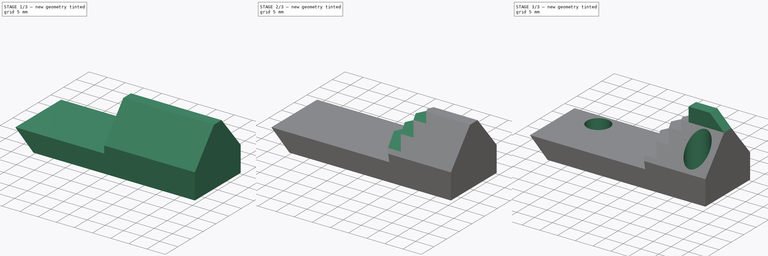
[diagram: build sequence overview — one tinted view per stage of 3, left to right]
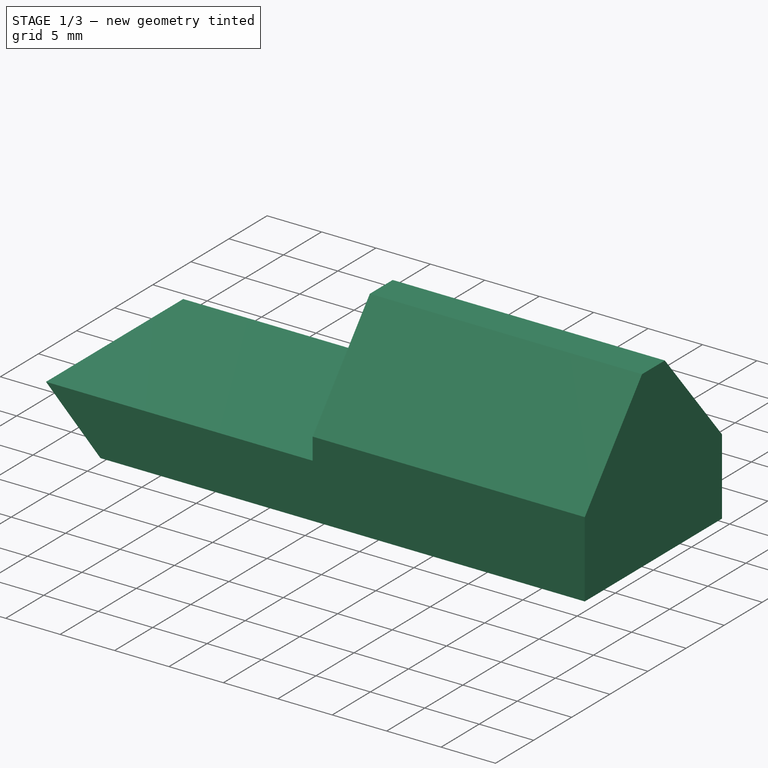
[diagram: stage 1 of 3 — iso view after this stage's code; geometry added in this stage tinted green]
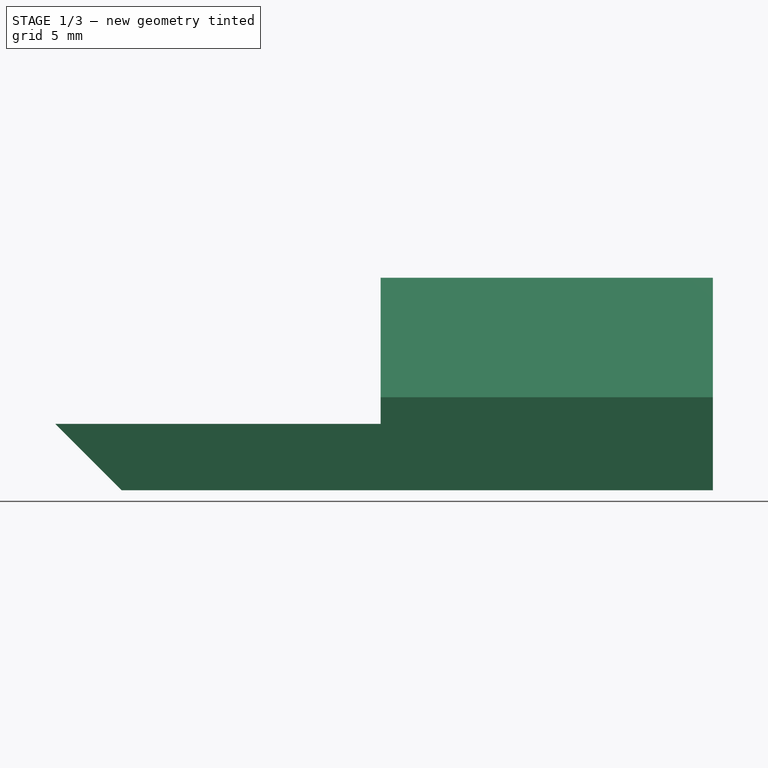
[diagram: stage 1 of 3 — front view after this stage's code; geometry added in this stage tinted green]
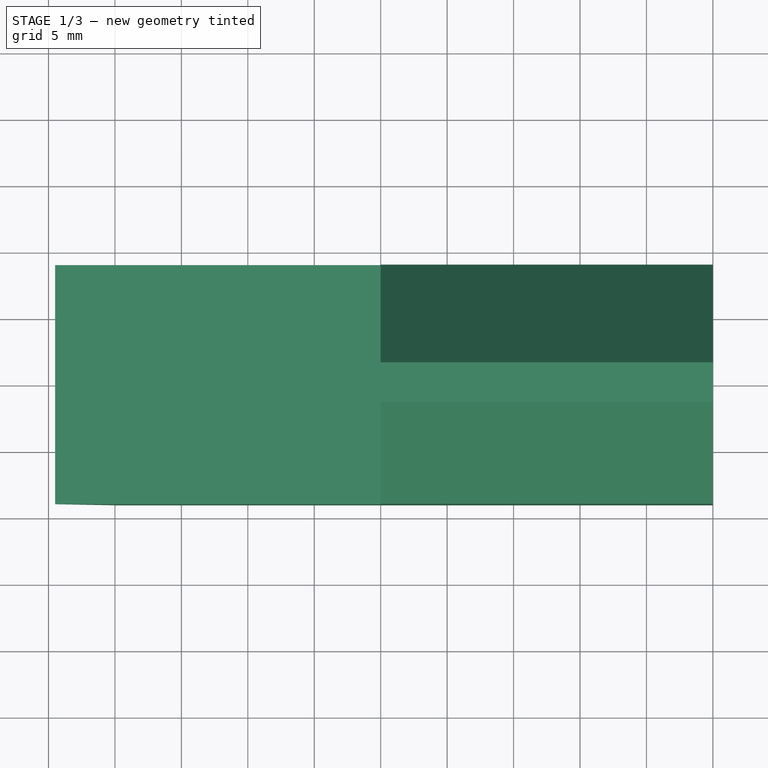
[diagram: stage 1 of 3 — top view after this stage's code; geometry added in this stage tinted green]
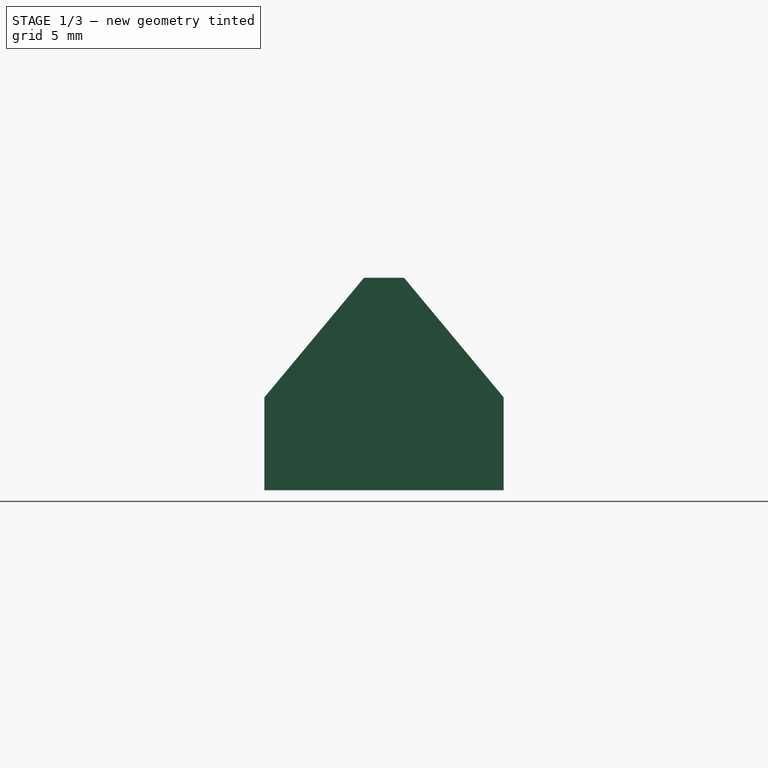
[diagram: stage 1 of 3 — right view after this stage's code; geometry added in this stage tinted green]
FCSTD DOCUMENT  (FreeCAD 1.0R39109 (Git))
Label: FrontSight.stl
License: All rights reserved
LicenseURL: http://en.wikipedia.org/wiki/All_rights_reserved
objects: Sketcher::SketchObject×5, PartDesign::Pad×3, PartDesign::Pocket×1, PartDesign::Mirrored×1, PartDesign::Hole×1, PartDesign::Body×1, App::Part×1
note: 28 computed .brp shape members not serialized (recipe doc carries the construction recipe); baked Part::Feature solids carry a one-line shape summary decoded from their .brp

FEATURE [Sketcher::SketchObject] Sketch
  ArcFitTolerance = 1e-06
  AttachmentSupport = -> [XZ_Plane001]
  FullyConstrained = true
  MakeInternals = false
  MapMode = 5
  Placement = pos=(0,0,0) rot=(1,0,0;1.5708rad)
  sketch-geometry (4):
    g0: LineSegment StartX=0 StartY=0 StartZ=0 EndX=0 EndY=5 EndZ=0
    g1: LineSegment StartX=0 StartY=5 StartZ=0 EndX=-49.5 EndY=5 EndZ=0
    g2: LineSegment StartX=-49.5 StartY=5 StartZ=0 EndX=-44.5 EndY=0 EndZ=0
    g3: LineSegment StartX=-44.5 StartY=0 StartZ=0 EndX=0 EndY=0 EndZ=0
  constraints (11):
    c: Coincident(g-1,g0)
    c: PointOnObject(g0,g-2)
    c: Coincident(g0,g1)
    c: Horizontal(g1)
    c: Coincident(g1,g2)
    c: PointOnObject(g2,g-1)
    c: Coincident(g2,g3)
    c: Coincident(g3,g0)
    c: DistanceY(g0,g0) = 5
    c: DistanceX(g3,g3) = 44.5
    c: Angle(g3,g2) = 2.35619
FEATURE [PartDesign::Pad] Pad
  Direction = (0,-1,2e-16)
  Length = 18
  Length2 = 10
  Midplane = true
  Placement = pos=(0,0,0) rot=(1,0,0;1.5708rad)
  Profile = -> Sketch
  ReferenceAxis = -> Sketch [N_Axis]
  Refine = true
  Suppressed = false
  Type = 0
FEATURE [Sketcher::SketchObject] Sketch001
  ArcFitTolerance = 1e-06
  AttachmentOffset = pos=(0,0,20) rot=(0,0,1;0rad)
  AttachmentSupport = -> [XY_Plane001]
  FullyConstrained = true
  MakeInternals = false
  MapMode = 5
  Placement = pos=(0,0,20) rot=(0,0,1;0rad)
  sketch-geometry (2):
    g0: Circle CenterX=-5 CenterY=-5 CenterZ=0 NormalX=0 NormalY=0 NormalZ=1 AngleXU=0 Radius=1.5
    g1: Circle CenterX=-40 CenterY=5 CenterZ=0 NormalX=0 NormalY=0 NormalZ=1 AngleXU=0 Radius=1.5
  constraints (6):
    c: DistanceX(g1,g-1) = 40
    c: DistanceX(g0,g-1) = 5
    c: Equal(g0,g1)
    c: Diameter(g1) = 3
    c: DistanceY(g0,g-1) = 5
    c: DistanceY(g-1,g1) = 5
FEATURE [Sketcher::SketchObject] Sketch002
  ArcFitTolerance = 1e-06
  AttachmentSupport = -> [YZ_Plane001]
  FullyConstrained = true
  MakeInternals = false
  MapMode = 5
  Placement = pos=(0,0,0) rot=(0.57735,0.57735,0.57735;2.0944rad)
  sketch-geometry (6):
    g0: LineSegment StartX=-9 StartY=5 StartZ=0 EndX=9 EndY=5 EndZ=0
    g1: LineSegment StartX=9 StartY=5 StartZ=0 EndX=9 EndY=7 EndZ=0
    g2: LineSegment StartX=-1.5 StartY=16 StartZ=0 EndX=-9 EndY=7 EndZ=0
    g3: LineSegment StartX=-9 StartY=7 StartZ=0 EndX=-9 EndY=5 EndZ=0
    g4: LineSegment StartX=-1.5 StartY=16 StartZ=0 EndX=1.5 EndY=16 EndZ=0
    g5: LineSegment StartX=1.5 StartY=16 StartZ=0 EndX=9 EndY=7 EndZ=0
  constraints (17):
    c: Coincident(g0,g1)
    c: Vertical(g1)
    c: Coincident(g2,g3)
    c: Coincident(g3,g0)
    c: Vertical(g3)
    c: DistanceY(g-1,g0) = 5
    c: DistanceY(g1,g1) = 2
    c: Horizontal(g1,g2)
    c: Symmetric(g0,g0,g-2)
    c: DistanceX(g0,g0) = 18
    c: DistanceY(g-1,g2) = 16
    c: Coincident(g4,g2)
    c: Horizontal(g4)
    c: Coincident(g5,g4)
    c: Coincident(g5,g1)
    c: Equal(g5,g2)
    c: DistanceX(g4,g4) = 3
FEATURE [PartDesign::Pad] Pad001
  BaseFeature = -> Pad
  Direction = (1,0,0)
  Length = 25
  Length2 = 10
  Placement = pos=(0,0,0) rot=(1,0,0;1.5708rad)
  Profile = -> Sketch002
  ReferenceAxis = -> Sketch002 [N_Axis]
  Refine = true
  Reversed = true
  Suppressed = false
  Type = 0
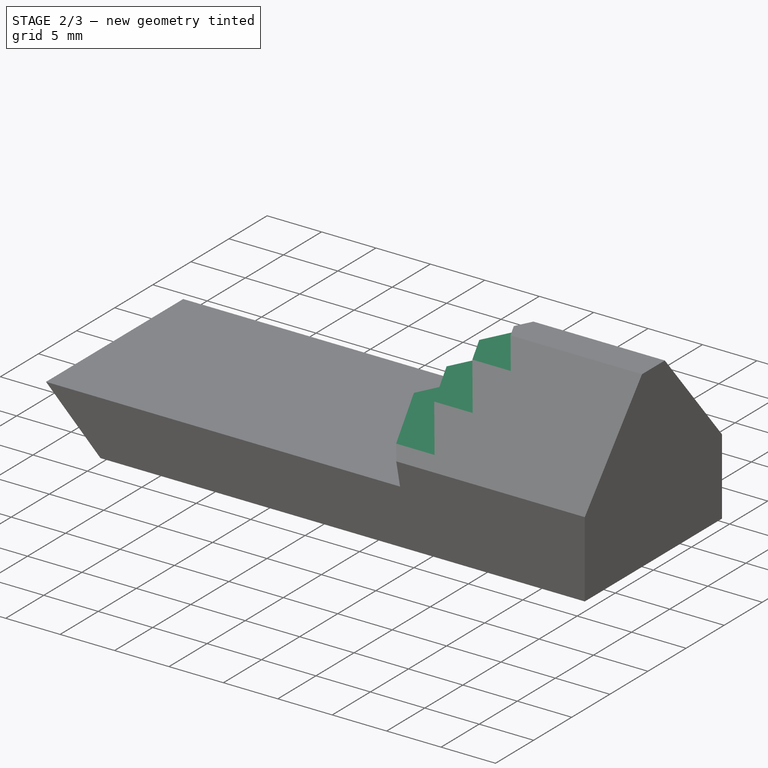
[diagram: stage 2 of 3 — iso view after this stage's code; geometry added in this stage tinted green]
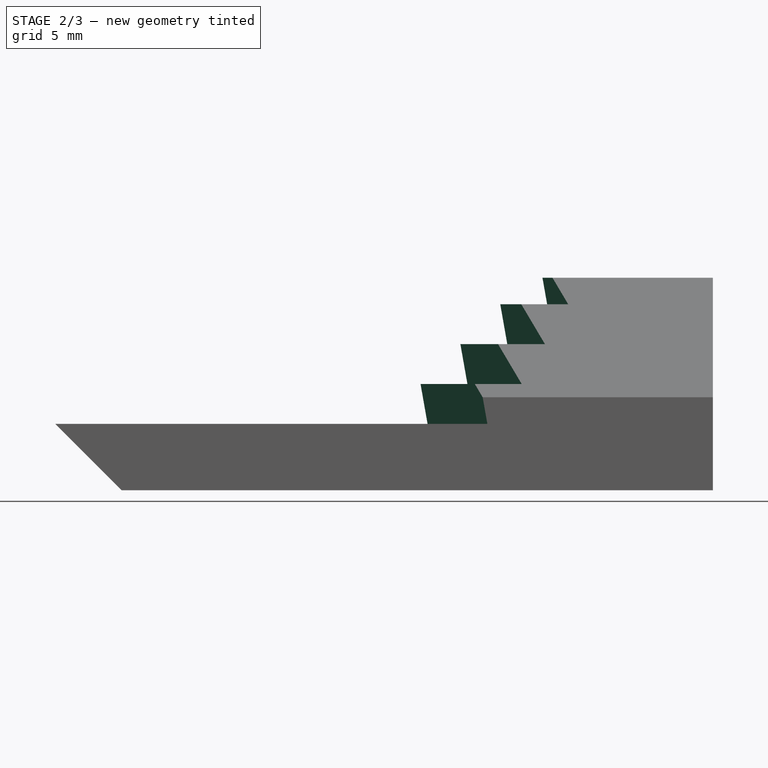
[diagram: stage 2 of 3 — front view after this stage's code; geometry added in this stage tinted green]
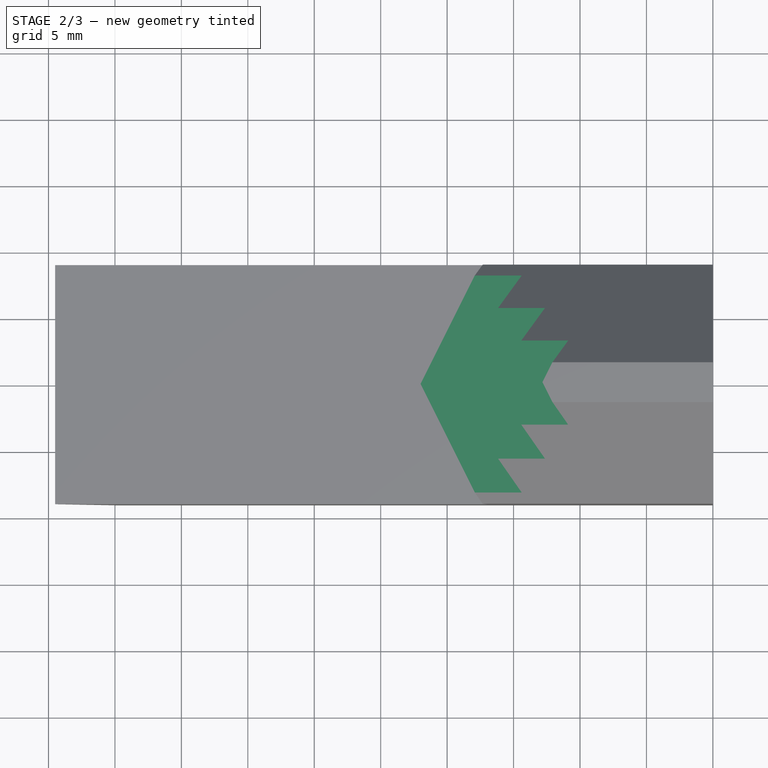
[diagram: stage 2 of 3 — top view after this stage's code; geometry added in this stage tinted green]
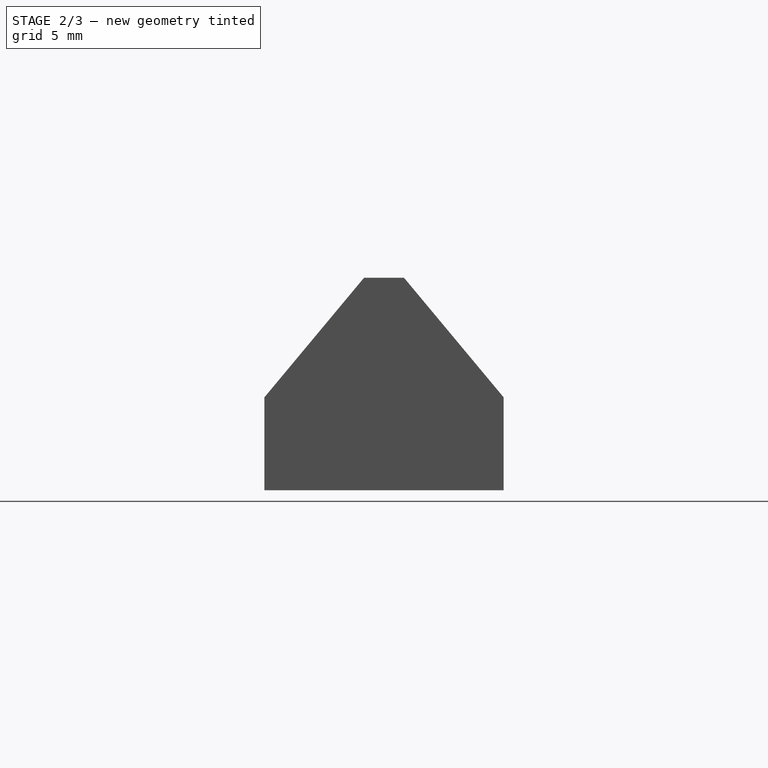
[diagram: stage 2 of 3 — right view after this stage's code; geometry added in this stage tinted green]
FEATURE [Sketcher::SketchObject] Sketch003
  ArcFitTolerance = 1e-06
  AttachmentSupport = -> [XZ_Plane001]
  FullyConstrained = true
  MakeInternals = false
  MapMode = 5
  Placement = pos=(0,0,0) rot=(1,0,0;1.5708rad)
  sketch-geometry (14):
    g0: LineSegment StartX=-10 StartY=20 StartZ=0 EndX=-40 EndY=20 EndZ=0
    g1: LineSegment StartX=-40 StartY=20 StartZ=0 EndX=-40 EndY=5 EndZ=0
    g2: LineSegment StartX=-21.471 StartY=5 StartZ=0 EndX=-22 EndY=8 EndZ=0
    g3: LineSegment StartX=-22 StartY=8 StartZ=0 EndX=-18.471 EndY=8 EndZ=0
    g4: LineSegment StartX=-18.471 StartY=8 StartZ=0 EndX=-19 EndY=11 EndZ=0
    g5: LineSegment StartX=-19 StartY=11 StartZ=0 EndX=-15.471 EndY=11 EndZ=0
    g6: LineSegment StartX=-15.471 StartY=11 StartZ=0 EndX=-16 EndY=14 EndZ=0
    g7: LineSegment StartX=-16 StartY=14 StartZ=0 EndX=-12.471 EndY=14 EndZ=0
    g8: LineSegment StartX=-12.471 StartY=14 StartZ=0 EndX=-13 EndY=17 EndZ=0
    g9: LineSegment StartX=-13 StartY=17 StartZ=0 EndX=-9.47102 EndY=17 EndZ=0
    g10: LineSegment StartX=-9.47102 StartY=17 StartZ=0 EndX=-10 EndY=20 EndZ=0
    g11: LineSegment StartX=-21.471 StartY=5 StartZ=0 EndX=-25 EndY=5 EndZ=0
    g12: LineSegment StartX=-25 StartY=5 StartZ=0 EndX=-40 EndY=5 EndZ=0
    g13: LineSegment [constr] StartX=-25 StartY=5 StartZ=0 EndX=-10 EndY=20 EndZ=0
  constraints (41):
    c: Horizontal(g0)
    c: Coincident(g1,g0)
    c: Vertical(g1)
    c: DistanceX(g0,g-1) = 40
    c: DistanceY(g-1,g1) = 5
    c: Coincident(g2,g3)
    c: Horizontal(g3)
    c: Coincident(g3,g4)
    c: Coincident(g4,g5)
    c: Horizontal(g5)
    c: Coincident(g5,g6)
    c: Coincident(g6,g7)
    c: Coincident(g7,g8)
    c: Coincident(g8,g9)
    c: Horizontal(g9)
    c: Coincident(g9,g10)
    c: Coincident(g10,g0)
    c: Equal(g10,g8)
    c: Equal(g8,g6)
    c: Equal(g6,g4)
    c: Equal(g4,g2)
    c: Parallel(g2,g4)
    c: Parallel(g4,g6)
    c: Parallel(g6,g8)
    c: Parallel(g8,g10)
    c: Equal(g3,g5)
    c: Equal(g5,g7)
    c: Equal(g7,g9)
    c: Horizontal(g7)
    c: Angle(g6,g5) = 1.39626
    c: Coincident(g11,g2)
    c: Horizontal(g11)
    c: Equal(g11,g3)
    c: Coincident(g12,g11)
    c: Coincident(g12,g1)
    c: Horizontal(g12)
    c: Coincident(g13,g11)
    c: Coincident(g13,g0)
    c: Angle(g-1,g13) = 0.785398
    c: DistanceX(g0,g-1) = 10
    c: DistanceY(g1,g0) = 15
FEATURE [PartDesign::Pocket] Pocket
  BaseFeature = -> Pad001
  Direction = (0.5,1,0)
  Length = 5
  Length2 = 5
  Placement = pos=(0,0,0) rot=(1,0,0;1.5708rad)
  Profile = -> Sketch003
  ReferenceAxis = -> Sketch003 [N_Axis]
  Refine = true
  Suppressed = false
  Type = 1
  UseCustomVector = true
FEATURE [Sketcher::SketchObject] Sketch004
  ArcFitTolerance = 1e-06
  AttachmentSupport = -> [XZ_Plane001]
  FullyConstrained = true
  MakeInternals = false
  MapMode = 5
  Placement = pos=(0,0,0) rot=(1,0,0;1.5708rad)
  sketch-geometry (6):
    g0: LineSegment StartX=0 StartY=16 StartZ=0 EndX=-4 EndY=20 EndZ=0
    g1: LineSegment StartX=-4 StartY=20 StartZ=0 EndX=-10 EndY=20 EndZ=0
    g2: LineSegment StartX=-10 StartY=20 StartZ=0 EndX=-10 EndY=16 EndZ=0
    g3: LineSegment StartX=-10 StartY=16 StartZ=0 EndX=-10 EndY=5 EndZ=0
    g4: LineSegment StartX=-10 StartY=5 StartZ=0 EndX=0 EndY=5 EndZ=0
    g5: LineSegment StartX=0 StartY=5 StartZ=0 EndX=0 EndY=16 EndZ=0
  constraints (18):
    c: PointOnObject(g0,g-2)
    c: Coincident(g0,g1)
    c: Horizontal(g1)
    c: Coincident(g1,g2)
    c: DistanceY(g-1,g0) = 16
    c: DistanceX(g2,g-1) = 10
    c: Coincident(g3,g2)
    c: Coincident(g4,g3)
    c: Horizontal(g4)
    c: Coincident(g5,g4)
    c: Coincident(g5,g0)
    c: Vertical(g5)
    c: Horizontal(g2,g0)
    c: Angle(g-2,g0) = 0.785398
    c: Vertical(g2)
    c: DistanceY(g-1,g3) = 5
    c: Vertical(g3)
    c: DistanceY(g-1,g0) = 20
FEATURE [PartDesign::Mirrored] Mirrored
  BaseFeature = -> Pocket
  MirrorPlane = -> XZ_Plane001
  Originals = -> [Pocket]
  Placement = pos=(0,0,0) rot=(1,0,0;1.5708rad)
  Refine = true
  Suppressed = false
  TransformMode = 0
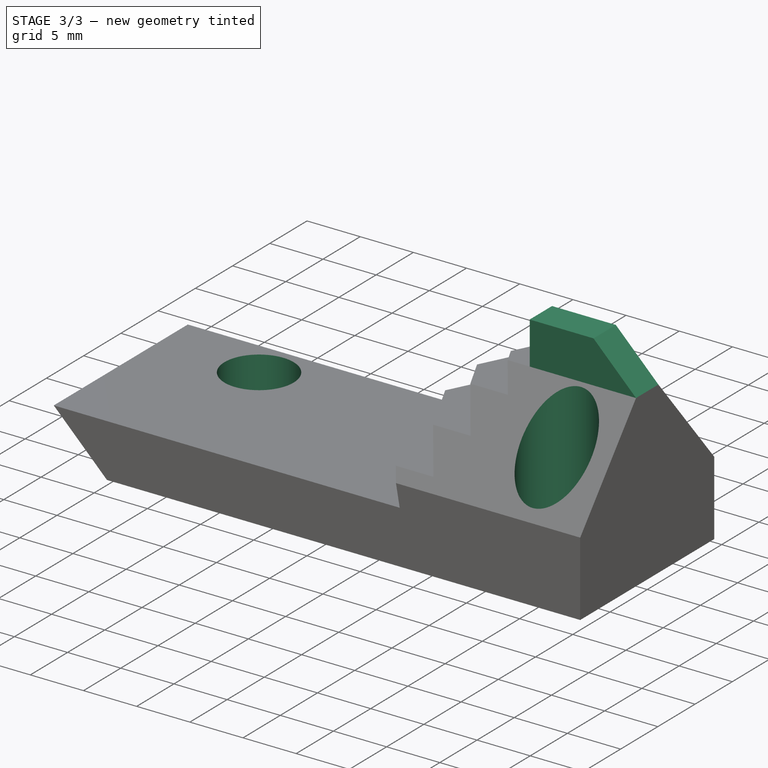
[diagram: stage 3 of 3 — iso view after this stage's code; geometry added in this stage tinted green]
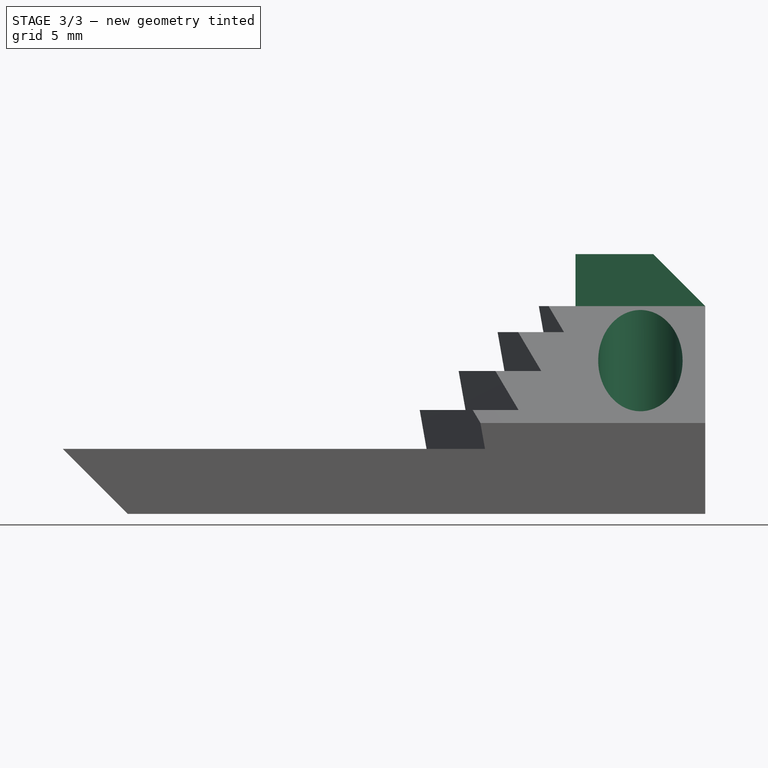
[diagram: stage 3 of 3 — front view after this stage's code; geometry added in this stage tinted green]
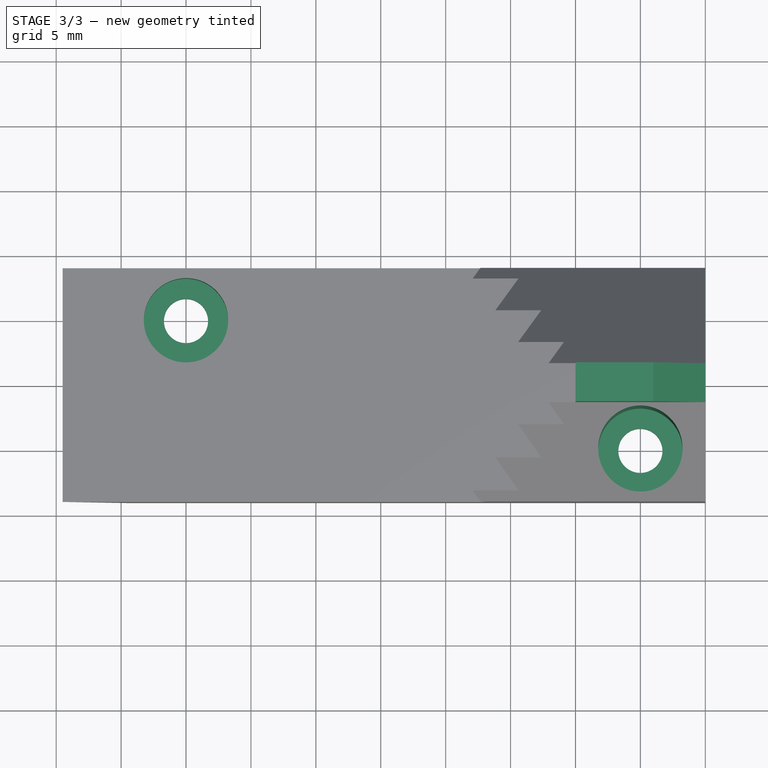
[diagram: stage 3 of 3 — top view after this stage's code; geometry added in this stage tinted green]
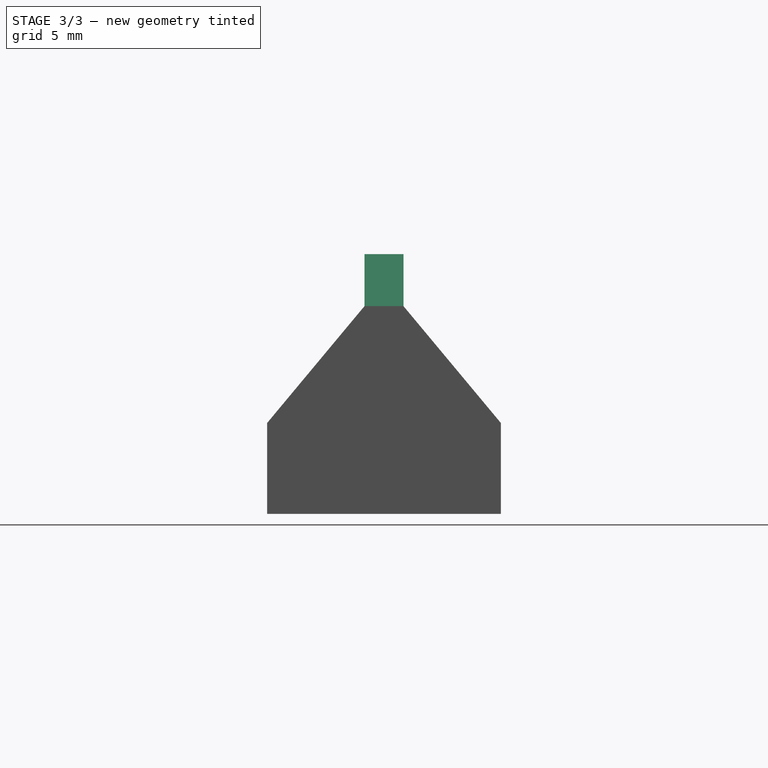
[diagram: stage 3 of 3 — right view after this stage's code; geometry added in this stage tinted green]
FEATURE [PartDesign::Pad] Pad002
  BaseFeature = -> Mirrored
  Direction = (0,-1,2e-16)
  Length = 3
  Length2 = 10
  Midplane = true
  Placement = pos=(0,0,0) rot=(1,0,0;1.5708rad)
  Profile = -> Sketch004
  ReferenceAxis = -> Sketch004 [N_Axis]
  Refine = true
  Suppressed = false
  Type = 0
FEATURE [PartDesign::Hole] Hole
  BaseFeature = -> Pad002
  CustomThreadClearance = 0
  Depth = 40
  DepthType = 0
  Diameter = 3.4
  DrillForDepth = false
  DrillPoint = 1
  DrillPointAngle = 118
  HoleCutCountersinkAngle = 90
  HoleCutCustomValues = false
  HoleCutDepth = 18.5
  HoleCutDiameter = 6.5
  HoleCutType = 1
  ModelThread = false
  Placement = pos=(0,0,0) rot=(1,0,0;1.5708rad)
  Profile = -> Sketch001
  Refine = true
  Suppressed = false
  Tapered = false
  TaperedAngle = 90
  ThreadClass = 0
  ThreadDepth = 40
  ThreadDepthType = 0
  ThreadDirection = 0
  ThreadFit = 0
  ThreadSize = 9
  ThreadType = 1
  Threaded = false
  UseCustomThreadClearance = false
FEATURE [PartDesign::Body] Body
  AllowCompound = false
  Group = -> [Sketch,Pad,Sketch001,Pad001,Sketch003,Pocket,Sketch004,Mirrored,Pad002,Hole,Sketch002]
  Origin = -> Origin001
  Tip = -> Hole
FEATURE [App::Part] Part  label="FrontSight.stl"
  Group = -> [Body]
  Origin = -> Origin
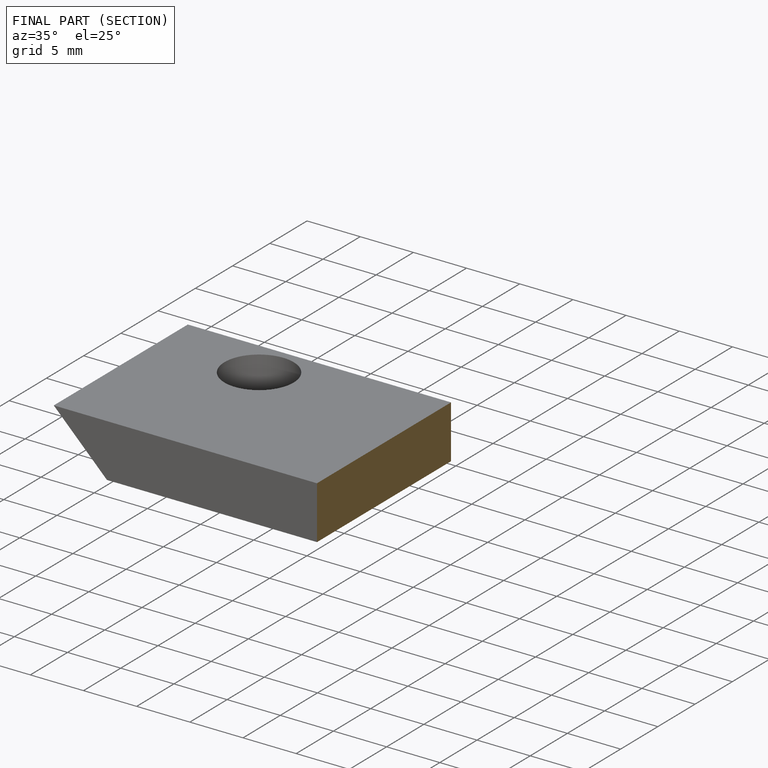
[diagram: finished part — half-section view (interior)]
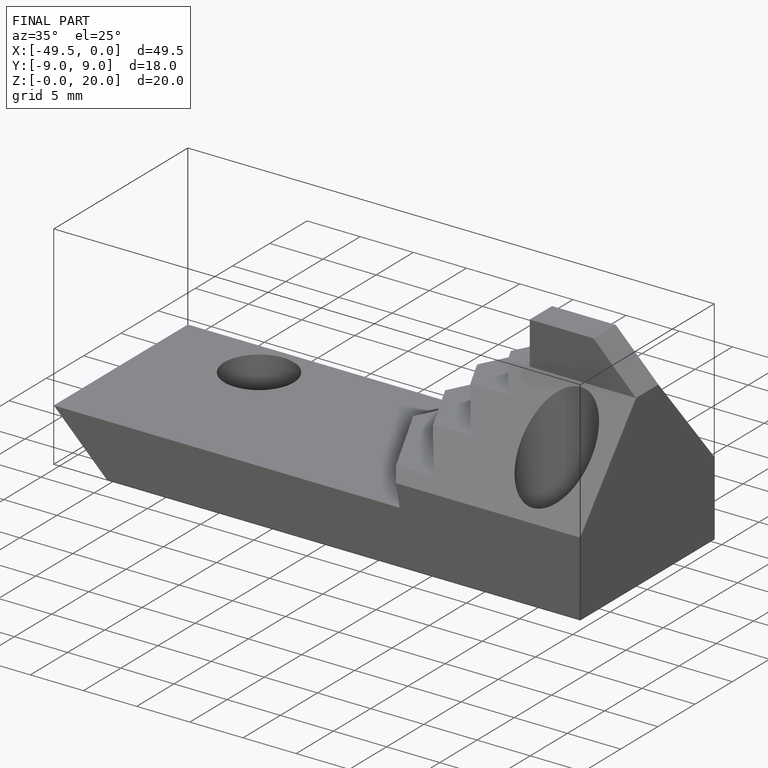
[diagram: finished part — iso view with bounding-box wireframe]
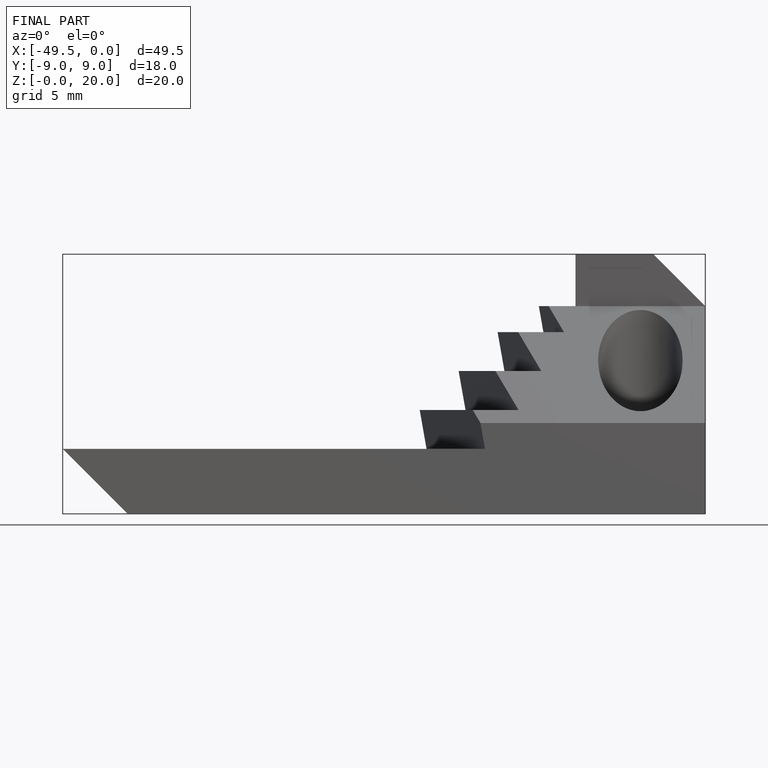
[diagram: finished part — front view with bounding-box wireframe]
